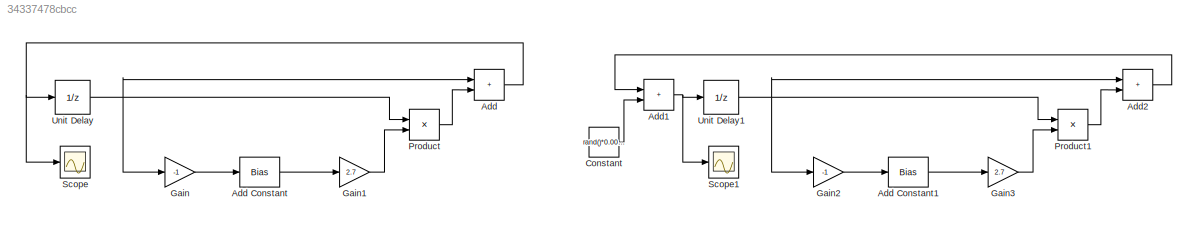
MODEL slx_34337478cbcc
KIND model
CONFIG AbsTol = auto
CONFIG EnableMultiTasking = off
CONFIG FixedStep = auto
CONFIG MaxStep = auto
CONFIG MinStep = auto
CONFIG RelTol = 1e-3
CONFIG SampleTimeConstraint = Unconstrained
CONFIG SolverName = VariableStepAuto
CONFIG StartTime = 0.0
CONFIG StopTime = 100
BLOCK [Sum] Add
  IconShape = rectangular
BLOCK [Bias] Add Constant
  Bias = 1
  SaturateOnIntegerOverflow = off
BLOCK [Bias] Add Constant1
  Bias = 1
  SaturateOnIntegerOverflow = off
BLOCK [Sum] Add1
  IconShape = rectangular
BLOCK [Sum] Add2
  IconShape = rectangular
BLOCK [Constant] Constant
  Value = rand()*0.00001
BLOCK [Gain] Gain
  Gain = -1
BLOCK [Gain] Gain1
  Gain = 2.7
BLOCK [Gain] Gain2
  Gain = -1
BLOCK [Gain] Gain3
  Gain = 2.7
BLOCK [Product] Product
BLOCK [Product] Product1
BLOCK [Scope] Scope
  Floating = off
  NumInputPorts = 1
  ScopeSpecificationString = Simulink.scopes.TimeScopeBlockCfg('CurrentConfiguration', extmgr.ConfigurationSet(extmgr.Configuration('Core','General UI',true),extmgr.Configuration('Core','Source UI',true),extmgr.Configuration('Sources','WiredSimulink',true),extmgr.Configuration('Visuals','Time Domain',true,'SerializedDisplays',{struct('MinYLimReal','0.23812','MaxYLimReal','1.38172','YLabelReal','','MinYLimMag','0.23812','MaxYL...<+1577ch>
BLOCK [Scope] Scope1
  Floating = off
  NumInputPorts = 1
  ScopeSpecificationString = Simulink.scopes.TimeScopeBlockCfg('CurrentConfiguration', extmgr.ConfigurationSet(extmgr.Configuration('Core','General UI',true),extmgr.Configuration('Core','Source UI',true),extmgr.Configuration('Sources','WiredSimulink',true,'DataLoggingVariableName','ScopeData1'),extmgr.Configuration('Visuals','Time Domain',true,'SerializedDisplays',{struct('MinYLimReal','0.23886','MaxYLimReal','1.38142','YLabe...<+1590ch>
BLOCK [UnitDelay] Unit Delay
  HasFrameUpgradeWarning = on
  InitialCondition = rand(5,1)*1.3
  SampleTime = -1
BLOCK [UnitDelay] Unit Delay1
  HasFrameUpgradeWarning = on
  InitialCondition = rand(5,1)*1.3
  SampleTime = -1
LINE Add Constant1:1 -> Gain3:1
LINE Add Constant:1 -> Gain1:1
NET Add1:1 -> Scope1:1, Unit Delay1:1
LINE Add2:1 -> Add1:1
NET Add:1 -> Scope:1, Unit Delay:1
LINE Constant:1 -> Add1:2
LINE Gain1:1 -> Product:2
LINE Gain2:1 -> Add Constant1:1
LINE Gain3:1 -> Product1:2
LINE Gain:1 -> Add Constant:1
LINE Product1:1 -> Add2:2
LINE Product:1 -> Add:2
NET Unit Delay1:1 -> Add2:1, Gain2:1, Product1:1
NET Unit Delay:1 -> Add:1, Gain:1, Product:1
note: NET lines group one-source signal fan-out (src -> all destinations, sorted); 1:1 wires keep LINE
